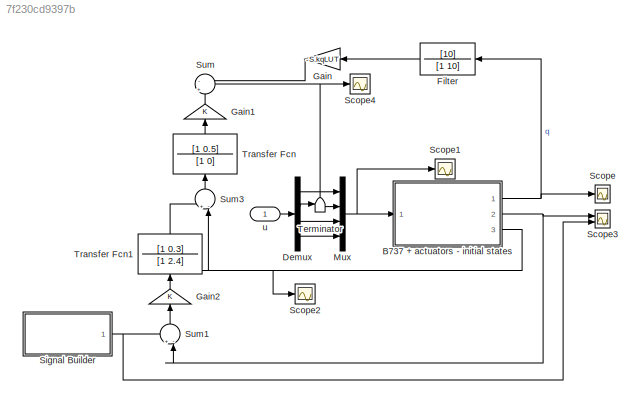
MODEL slx_7f230cd9397b
KIND model
CONFIG AbsTol = auto
CONFIG EnableMultiTasking = off
CONFIG FixedStep = auto
CONFIG MaxStep = auto
CONFIG MinStep = auto
CONFIG RelTol = 1e-3
CONFIG SampleTimeConstraint = Unconstrained
CONFIG Solver = VariableStepAuto
CONFIG SolverName = VariableStepAuto
CONFIG StartTime = 0.0
CONFIG StopTime = S.simtime
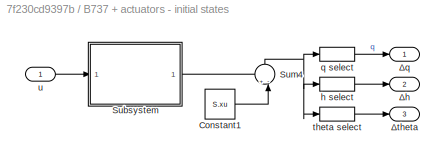
BLOCK [SubSystem] B737 + actuators - initial states
  Ports = [1, 3]
  RequestExecContextInheritance = off
BLOCK [Constant] B737 + actuators - initial states/Constant1
  Value = S.xu
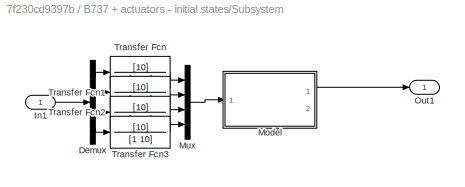
BLOCK [SubSystem] B737 + actuators - initial states/Subsystem
  Ports = [1, 1]
  RequestExecContextInheritance = off
BLOCK [Demux] B737 + actuators - initial states/Subsystem/Demux
  DisplayOption = bar
  Ports = [1, 4]
BLOCK [Inport] B737 + actuators - initial states/Subsystem/In1
  IconDisplay = Port number
BLOCK [ModelReference] B737 + actuators - initial states/Subsystem/Model
  ModelNameDialog = B737_JSB
  ModelReferenceVersion = 1.187
  Ports = [1, 2]
BLOCK [Mux] B737 + actuators - initial states/Subsystem/Mux
  DisplayOption = bar
  Ports = [4, 1]
BLOCK [Outport] B737 + actuators - initial states/Subsystem/Out1
  IconDisplay = Port number
BLOCK [TransferFcn] B737 + actuators - initial states/Subsystem/Transfer Fcn
  Denominator = [1 10]
  Numerator = [10]
BLOCK [TransferFcn] B737 + actuators - initial states/Subsystem/Transfer Fcn1
  Denominator = [1 10]
  Numerator = [10]
BLOCK [TransferFcn] B737 + actuators - initial states/Subsystem/Transfer Fcn2
  Denominator = [1 10]
  Numerator = [10]
BLOCK [TransferFcn] B737 + actuators - initial states/Subsystem/Transfer Fcn3
  Denominator = [1 10]
  Numerator = [10]
BLOCK [Sum] B737 + actuators - initial states/Sum4
  IconShape = round
  InputSameDT = off
  Inputs = +-|
  OutDataTypeStr = Inherit: Inherit via internal rule
  Ports = [2, 1]
  SaturateOnIntegerOverflow = off
BLOCK [Selector] B737 + actuators - initial states/h select
  IndexOptions = Index vector (dialog)
  Indices = [12]
  InputPortWidth = 12
  OutputSizes = 1
  Ports = [1, 1]
BLOCK [Selector] B737 + actuators - initial states/q select
  IndexOptions = Index vector (dialog)
  Indices = [8]
  InputPortWidth = 12
  OutputSizes = 1
  Ports = [1, 1]
BLOCK [Selector] B737 + actuators - initial states/theta select
  IndexOptions = Index vector (dialog)
  Indices = [5]
  InputPortWidth = 12
  OutputSizes = 1
  Ports = [1, 1]
BLOCK [Inport] B737 + actuators - initial states/u
  IconDisplay = Port number
BLOCK [Outport] B737 + actuators - initial states/Δh
  IconDisplay = Port number
  Port = 2
BLOCK [Outport] B737 + actuators - initial states/Δq
  IconDisplay = Port number
BLOCK [Outport] B737 + actuators - initial states/Δtheta
  IconDisplay = Port number
  Port = 3
BLOCK [Demux] Demux
  DisplayOption = bar
  Ports = [1, 4]
BLOCK [TransferFcn] Filter
  Commented = through
  Denominator = [1 10]
  Numerator = [10]
BLOCK [Gain] Gain
  Gain = -S.kqLUT
  OutDataTypeStr = Inherit: Inherit via internal rule
  ParamDataTypeStr = Inherit: Inherit via internal rule
  SaturateOnIntegerOverflow = off
BLOCK [Gain] Gain1
  OutDataTypeStr = Inherit: Inherit via internal rule
  ParamDataTypeStr = Inherit: Inherit via internal rule
  SaturateOnIntegerOverflow = off
BLOCK [Gain] Gain2
  OutDataTypeStr = Inherit: Inherit via internal rule
  ParamDataTypeStr = Inherit: Inherit via internal rule
  SaturateOnIntegerOverflow = off
BLOCK [Mux] Mux
  DisplayOption = bar
  Ports = [4, 1]
BLOCK [Scope] Scope
  Floating = off
  NumInputPorts = 1
  Ports = [1]
  ScopeSpecificationString = Simulink.scopes.TimeScopeBlockCfg('CurrentConfiguration', extmgr.ConfigurationSet(extmgr.Configuration('Core','General UI',true),extmgr.Configuration('Core','Source UI',true),extmgr.Configuration('Sources','WiredSimulink',true,'DataLoggingVariableName','ScopeData1'),extmgr.Configuration('Visuals','Time Domain',true),extmgr.Configuration('Tools','Plot Navigation',true),extmgr.Configuration('Tools',...<+40ch>
BLOCK [Scope] Scope1
  Floating = off
  NumInputPorts = 1
  Ports = [1]
  ScopeSpecificationString = Simulink.scopes.TimeScopeBlockCfg('CurrentConfiguration', extmgr.ConfigurationSet(extmgr.Configuration('Core','General UI',true),extmgr.Configuration('Core','Source UI',true),extmgr.Configuration('Sources','WiredSimulink',true,'DataLoggingVariableName','ScopeData1'),extmgr.Configuration('Visuals','Time Domain',true,'SerializedDisplays',{struct('MinYLimReal','-11153959.30328','MaxYLimReal','1239477...<+1515ch>
BLOCK [Scope] Scope2
  Floating = off
  NumInputPorts = 1
  Ports = [1]
  ScopeSpecificationString = Simulink.scopes.TimeScopeBlockCfg('CurrentConfiguration', extmgr.ConfigurationSet(extmgr.Configuration('Core','General UI',true),extmgr.Configuration('Core','Source UI',true),extmgr.Configuration('Sources','WiredSimulink',true,'DataLoggingVariableName','ScopeData2'),extmgr.Configuration('Visuals','Time Domain',true,'SerializedDisplays',{struct('MinYLimReal','-0.06526','MaxYLimReal','0.58729','YLab...<+1465ch>
BLOCK [Scope] Scope3
  Floating = off
  NumInputPorts = 2
  Ports = [2]
  ScopeSpecificationString = Simulink.scopes.TimeScopeBlockCfg('CurrentConfiguration', extmgr.ConfigurationSet(extmgr.Configuration('Core','General UI',true),extmgr.Configuration('Core','Source UI',true),extmgr.Configuration('Sources','WiredSimulink',true,'DataLoggingVariableName','ScopeData3'),extmgr.Configuration('Visuals','Time Domain',true,'SerializedDisplays',{struct('MinYLimReal','-75.47876','MaxYLimReal','82.36564','YL...<+1468ch>
BLOCK [Scope] Scope4
  Floating = off
  NumInputPorts = 1
  Ports = [1]
  ScopeSpecificationString = Simulink.scopes.TimeScopeBlockCfg('CurrentConfiguration', extmgr.ConfigurationSet(extmgr.Configuration('Core','General UI',true),extmgr.Configuration('Core','Source UI',true),extmgr.Configuration('Sources','WiredSimulink',true,'DataLoggingVariableName','ScopeData1'),extmgr.Configuration('Visuals','Time Domain',true,'SerializedDisplays',{struct('MinYLimReal','-11778.74912','MaxYLimReal','1312.23975...<+1466ch>
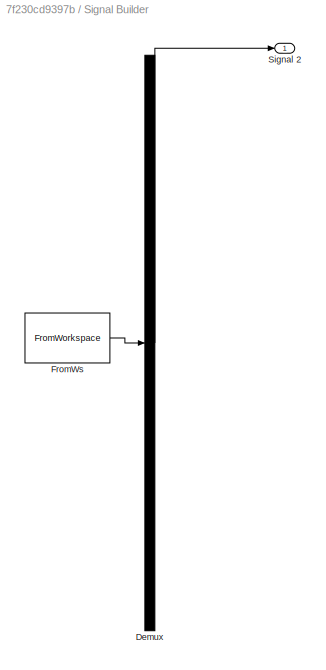
BLOCK [SubSystem] Signal Builder
  ClipboardFcn = sigbuilder_block('clipboard');
  CloseFcn = sigbuilder_block('close');
  ContinueFcn = sigbuilder_block('continue');
  CopyFcn = sigbuilder_block('copy');
  DeleteFcn = sigbuilder_block('delete');
  LoadFcn = sigbuilder_block('load');
  MaskHideContents = on
  ModelCloseFcn = sigbuilder_block('modelClose');
  NameChangeFcn = sigbuilder_block('namechange');
  OpenFcn = sigbuilder_block('open',[233.25 91.5 964.5 399.75 ]);
  PauseFcn = sigbuilder_block('pause');
  Ports = [0, 1]
  PreSaveFcn = sigbuilder_block('preSave');
  RequestExecContextInheritance = off
  StartFcn = sigbuilder_block('start');
  StopFcn = sigbuilder_block('stop');
  Tag = STV Subsys
BLOCK [Demux] Signal Builder/Demux
  Outputs = 1
  Ports = [1, 1]
  Tag = STV Demux
BLOCK [FromWorkspace] Signal Builder/FromWs
  SampleTime = 0
  Tag = STV FromWs
  VariableName = tuvar
  ZeroCross = on
BLOCK [Outport] Signal Builder/Signal 2
  IconDisplay = Port number
  Tag = STV Outport
BLOCK [Sum] Sum
  IconShape = round
  InputSameDT = off
  Inputs = -|+
  OutDataTypeStr = Inherit: Inherit via internal rule
  Ports = [2, 1]
  SaturateOnIntegerOverflow = off
BLOCK [Sum] Sum1
  IconShape = round
  InputSameDT = off
  Inputs = +-|
  OutDataTypeStr = Inherit: Inherit via internal rule
  Ports = [2, 1]
  SaturateOnIntegerOverflow = off
BLOCK [Sum] Sum3
  IconShape = round
  InputSameDT = off
  Inputs = +-|
  OutDataTypeStr = Inherit: Inherit via internal rule
  Ports = [2, 1]
  SaturateOnIntegerOverflow = off
BLOCK [Terminator] Terminator
BLOCK [TransferFcn] Transfer Fcn
  Commented = through
  Denominator = [1 0]
  Numerator = [1 0.5]
BLOCK [TransferFcn] Transfer Fcn1
  Commented = through
  Denominator = [1 2.4]
  Numerator = [1 0.3]
BLOCK [Inport] u
  IconDisplay = Port number
LINE B737 + actuators - initial states/Constant1:1 -> B737 + actuators - initial states/Sum4:2
LINE B737 + actuators - initial states/Subsystem/Demux:1 -> B737 + actuators - initial states/Subsystem/Transfer Fcn:1
LINE B737 + actuators - initial states/Subsystem/Demux:2 -> B737 + actuators - initial states/Subsystem/Transfer Fcn1:1
LINE B737 + actuators - initial states/Subsystem/Demux:3 -> B737 + actuators - initial states/Subsystem/Transfer Fcn2:1
LINE B737 + actuators - initial states/Subsystem/Demux:4 -> B737 + actuators - initial states/Subsystem/Transfer Fcn3:1
LINE B737 + actuators - initial states/Subsystem/In1:1 -> B737 + actuators - initial states/Subsystem/Demux:1
LINE B737 + actuators - initial states/Subsystem/Model:1 -> B737 + actuators - initial states/Subsystem/Out1:1
LINE B737 + actuators - initial states/Subsystem/Mux:1 -> B737 + actuators - initial states/Subsystem/Model:1
LINE B737 + actuators - initial states/Subsystem/Transfer Fcn1:1 -> B737 + actuators - initial states/Subsystem/Mux:2
LINE B737 + actuators - initial states/Subsystem/Transfer Fcn2:1 -> B737 + actuators - initial states/Subsystem/Mux:3
LINE B737 + actuators - initial states/Subsystem/Transfer Fcn3:1 -> B737 + actuators - initial states/Subsystem/Mux:4
LINE B737 + actuators - initial states/Subsystem/Transfer Fcn:1 -> B737 + actuators - initial states/Subsystem/Mux:1
LINE B737 + actuators - initial states/Subsystem:1 -> B737 + actuators - initial states/Sum4:1
NET B737 + actuators - initial states/Sum4:1 -> B737 + actuators - initial states/h select:1, B737 + actuators - initial states/q select:1, B737 + actuators - initial states/theta select:1
LINE B737 + actuators - initial states/h select:1 -> B737 + actuators - initial states/Δh:1
LINE B737 + actuators - initial states/q select:1 -> B737 + actuators - initial states/Δq:1
LINE B737 + actuators - initial states/theta select:1 -> B737 + actuators - initial states/Δtheta:1
LINE B737 + actuators - initial states/u:1 -> B737 + actuators - initial states/Subsystem:1
NET B737 + actuators - initial states:1 -> Filter:1, Scope:1
NET B737 + actuators - initial states:2 -> Scope3:1, Sum1:2
NET B737 + actuators - initial states:3 -> Scope2:1, Sum3:2
LINE Demux:1 -> Mux:1
LINE Demux:2 -> Terminator:1
LINE Demux:3 -> Mux:3
LINE Demux:4 -> Mux:4
LINE Filter:1 -> Gain:1
LINE Gain1:1 -> Sum:2
LINE Gain2:1 -> Transfer Fcn1:1
LINE Gain:1 -> Sum:1
NET Mux:1 -> B737 + actuators - initial states:1, Scope1:1
NET Signal Builder:1 -> Scope3:2, Sum1:1
LINE Sum1:1 -> Gain2:1
LINE Sum3:1 -> Transfer Fcn:1
NET Sum:1 -> Mux:2, Scope4:1
LINE Transfer Fcn1:1 -> Sum3:1
LINE Transfer Fcn:1 -> Gain1:1
LINE u:1 -> Demux:1
note: NET lines group one-source signal fan-out (src -> all destinations, sorted); 1:1 wires keep LINE
